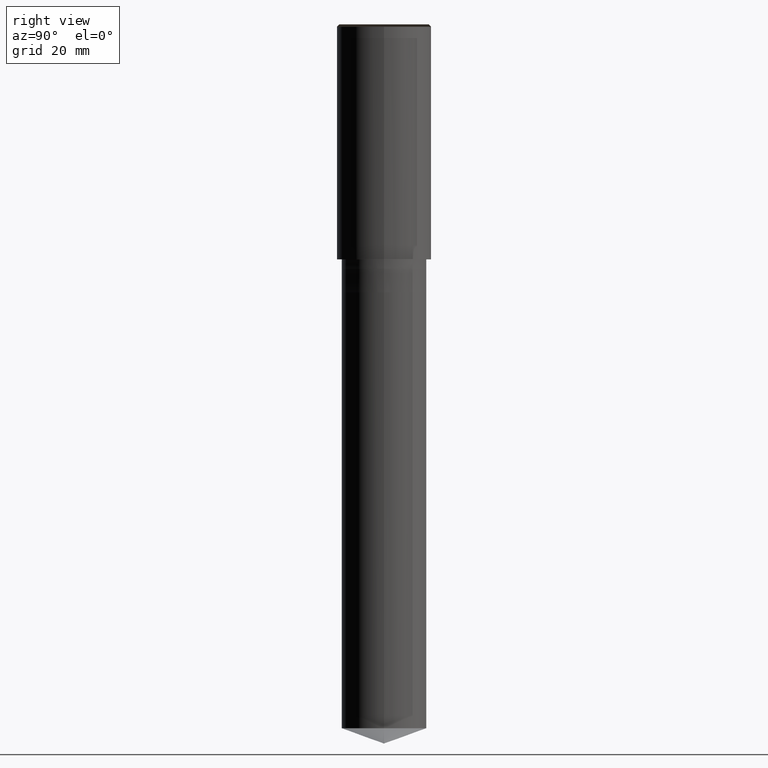
[diagram: clean part render]
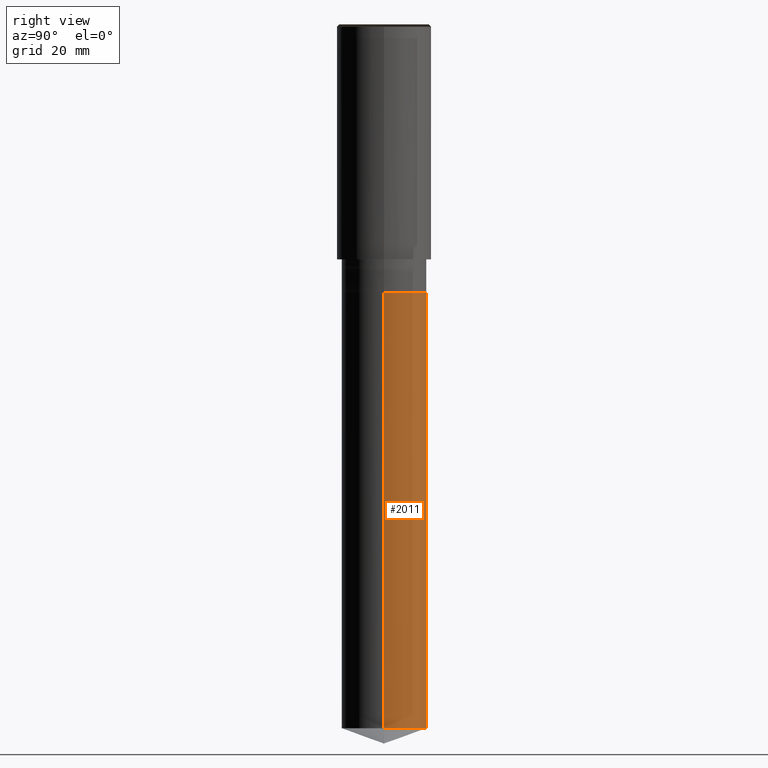
[diagram: same view with one face highlighted and labeled with its STEP entity id]
A machine part, right view. The second image highlights one B-rep face of the part: STEP entity #2011.
In plain terms, the highlighted face is a freeform B-spline surface patch.
Its self-contained STEP definition (entity closure, byte-faithful):
#1913=CARTESIAN_POINT('',(9.0,0.0,-99.724267891604));
#1914=CARTESIAN_POINT('',(9.0,9.0,-99.724267891604));
#1915=CARTESIAN_POINT('',(0.0,9.0,-99.724267891604));
#1916=CARTESIAN_POINT('',(-9.0,9.0,-99.724267891604));
#1917=CARTESIAN_POINT('',(-9.0,0.0,-99.724267891604));
#1918=CARTESIAN_POINT('',(9.0,0.0,-7.0));
#1919=CARTESIAN_POINT('',(9.0,9.0,-7.0));
#1920=CARTESIAN_POINT('',(0.0,9.0,-7.0));
#1921=CARTESIAN_POINT('',(-9.0,9.0,-7.0));
#1922=CARTESIAN_POINT('',(-9.0,0.0,-7.0));
#1992=(
BOUNDED_SURFACE()
B_SPLINE_SURFACE(1,2,(
(#1913,#1914,#1915,#1916,#1917),
(#1918,#1919,#1920,#1921,#1922)
), .UNSPECIFIED.,.F.,.F.,.F.)
B_SPLINE_SURFACE_WITH_KNOTS((2,2),(3,2,3),(
0.0,1.0),(
0.0,0.5,1.0), .UNSPECIFIED.)
GEOMETRIC_REPRESENTATION_ITEM()
RATIONAL_B_SPLINE_SURFACE(((1.0,0.707106781187,1.0,0.707106781187,1.0),
(1.0,0.707106781187,1.0,0.707106781187,1.0)
))
REPRESENTATION_ITEM('')
SURFACE()
);
#1993=(
BOUNDED_CURVE()
B_SPLINE_CURVE(2,(#1917,#1916,#1915,#1914,#1913),.UNSPECIFIED.,.F.,.F.)
B_SPLINE_CURVE_WITH_KNOTS((3,2,3),
(0.0,0.5,1.0),.UNSPECIFIED.)
CURVE()
GEOMETRIC_REPRESENTATION_ITEM()
RATIONAL_B_SPLINE_CURVE((1.0,0.707106781187,1.0,0.707106781187,1.0))
REPRESENTATION_ITEM('')
);
#1994=(
BOUNDED_CURVE()
B_SPLINE_CURVE(1,(#1913,#1918),.UNSPECIFIED.,.F.,.F.)
B_SPLINE_CURVE_WITH_KNOTS((2,2),
(0.0,1.0),.UNSPECIFIED.)
CURVE()
GEOMETRIC_REPRESENTATION_ITEM()
RATIONAL_B_SPLINE_CURVE((1.0,1.0))
REPRESENTATION_ITEM('')
);
#1995=(
BOUNDED_CURVE()
B_SPLINE_CURVE(2,(#1918,#1919,#1920,#1921,#1922),.UNSPECIFIED.,.F.,.F.)
B_SPLINE_CURVE_WITH_KNOTS((3,2,3),
(0.0,0.5,1.0),.UNSPECIFIED.)
CURVE()
GEOMETRIC_REPRESENTATION_ITEM()
RATIONAL_B_SPLINE_CURVE((1.0,0.707106781187,1.0,0.707106781187,1.0))
REPRESENTATION_ITEM('')
);
#1996=(
BOUNDED_CURVE()
B_SPLINE_CURVE(1,(#1922,#1917),.UNSPECIFIED.,.F.,.F.)
B_SPLINE_CURVE_WITH_KNOTS((2,2),
(0.0,1.0),.UNSPECIFIED.)
CURVE()
GEOMETRIC_REPRESENTATION_ITEM()
RATIONAL_B_SPLINE_CURVE((1.0,1.0))
REPRESENTATION_ITEM('')
);
#1997=VERTEX_POINT('',#1913);
#1998=VERTEX_POINT('',#1917);
#1999=VERTEX_POINT('',#1918);
#2000=VERTEX_POINT('',#1922);
#2001=EDGE_CURVE('',#1998,#1997,#1993,.T.);
#2002=EDGE_CURVE('',#1997,#1999,#1994,.T.);
#2003=EDGE_CURVE('',#1999,#2000,#1995,.T.);
#2004=EDGE_CURVE('',#2000,#1998,#1996,.T.);
#2005=ORIENTED_EDGE('',*,*,#2001,.T.);
#2006=ORIENTED_EDGE('',*,*,#2002,.T.);
#2007=ORIENTED_EDGE('',*,*,#2003,.T.);
#2008=ORIENTED_EDGE('',*,*,#2004,.T.);
#2009=EDGE_LOOP('',(#2005,#2006,#2007,#2008));
#2010=FACE_OUTER_BOUND('',#2009,.T.);
#2011=ADVANCED_FACE('',(#2010),#1992,.T.);